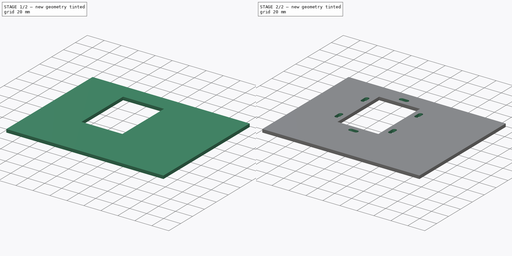
[diagram: build sequence overview — one tinted view per stage of 2, left to right]
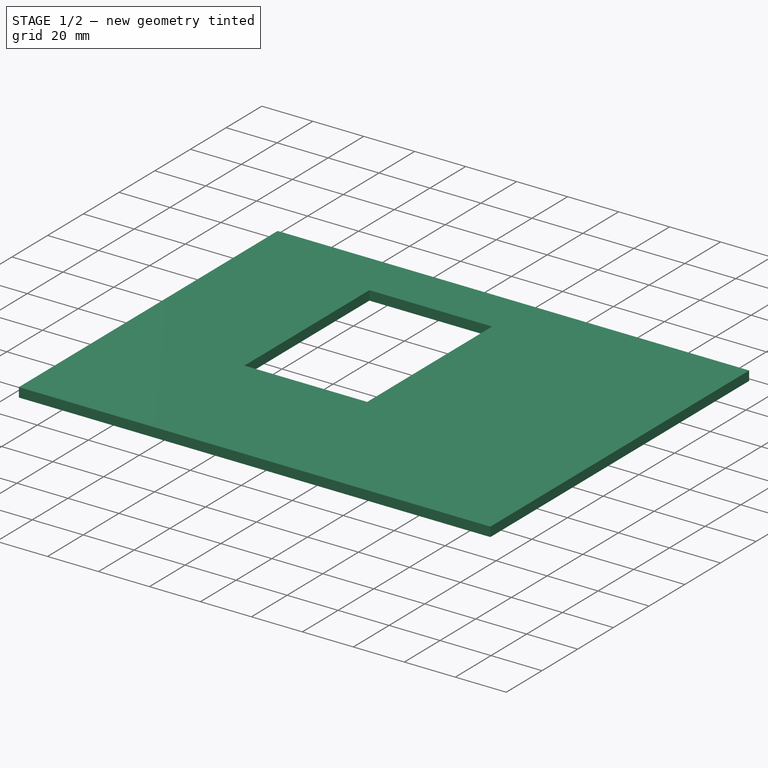
[diagram: stage 1 of 2 — iso view after this stage's code; geometry added in this stage tinted green]
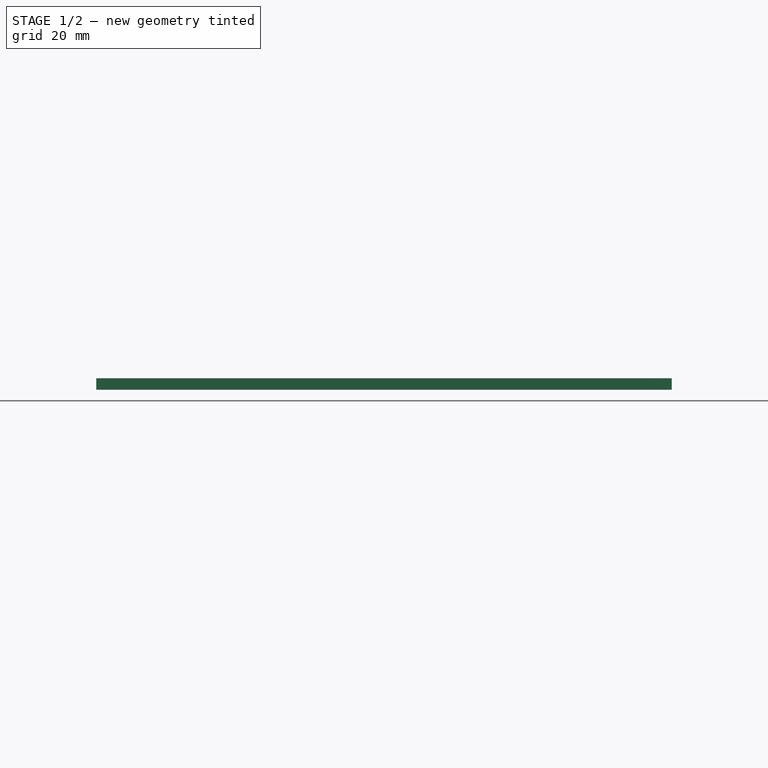
[diagram: stage 1 of 2 — front view after this stage's code; geometry added in this stage tinted green]
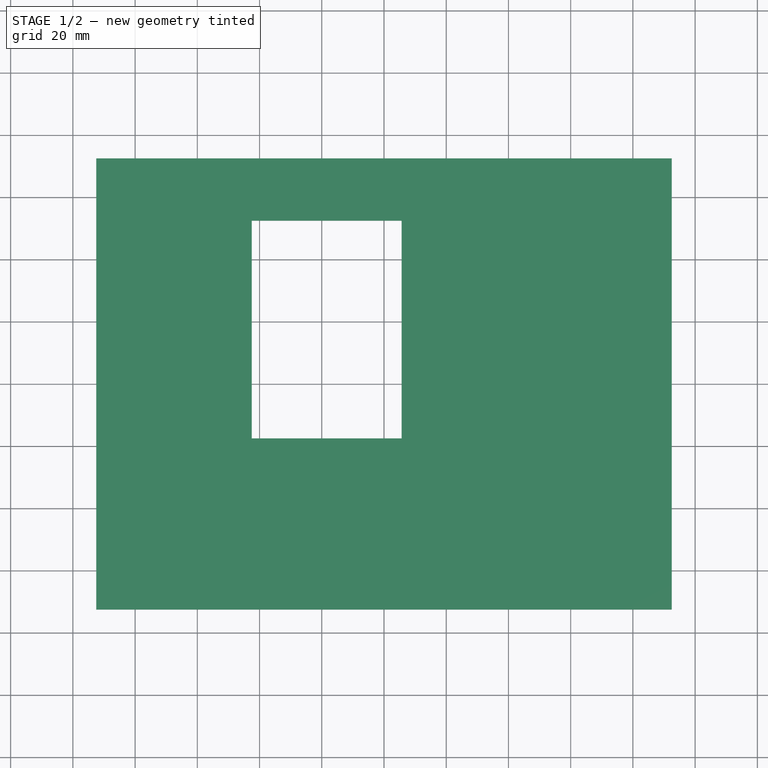
[diagram: stage 1 of 2 — top view after this stage's code; geometry added in this stage tinted green]
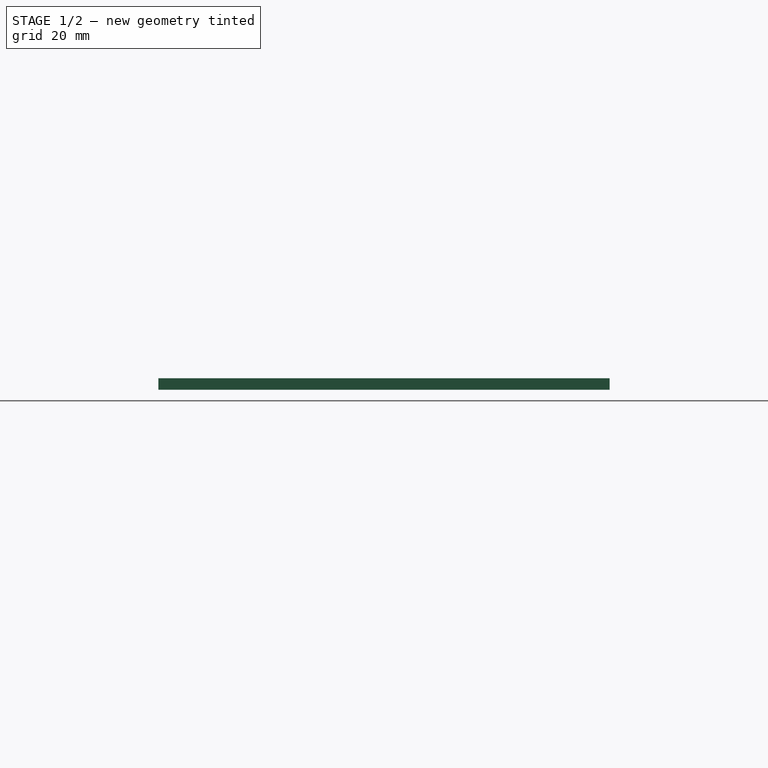
[diagram: stage 1 of 2 — right view after this stage's code; geometry added in this stage tinted green]
FCSTD DOCUMENT  (FreeCAD 0.19R)
Label: soporte rueda
License: All rights reserved
LicenseURL: http://en.wikipedia.org/wiki/All_rights_reserved
objects: Sketcher::SketchObject×4, PartDesign::Pocket×2, App::Part×1, PartDesign::Pad×1, PartDesign::Body×1
note: 11 computed .brp shape members not serialized (recipe doc carries the construction recipe); baked Part::Feature solids carry a one-line shape summary decoded from their .brp

FEATURE [App::Part] Part
  Origin = -> Origin
FEATURE [Sketcher::SketchObject] Sketch
  FullyConstrained = true
  MapMode = 5
  Support = -> [XY_Plane001]
  sketch-geometry (6):
    g0: LineSegment StartX=-92.5 StartY=72.5 StartZ=0 EndX=92.5 EndY=72.5 EndZ=0
    g1: LineSegment StartX=92.5 StartY=72.5 StartZ=0 EndX=92.5 EndY=-72.5 EndZ=0
    g2: LineSegment StartX=92.5 StartY=-72.5 StartZ=0 EndX=-92.5 EndY=-72.5 EndZ=0
    g3: LineSegment StartX=-92.5 StartY=-72.5 StartZ=0 EndX=-92.5 EndY=72.5 EndZ=0
    g4: LineSegment StartX=0 StartY=0 StartZ=0 EndX=92.5 EndY=72.5 EndZ=0
    g5: LineSegment StartX=0 StartY=0 StartZ=0 EndX=-92.5 EndY=-72.5 EndZ=0
  constraints (16):
    c: Coincident(g0,g1)
    c: Coincident(g1,g2)
    c: Coincident(g2,g3)
    c: Coincident(g3,g0)
    c: Horizontal(g0)
    c: Horizontal(g2)
    c: Vertical(g1)
    c: Vertical(g3)
    c: Coincident(g4,g-1)
    c: Coincident(g4,g0)
    c: Coincident(g5,g-1)
    c: Coincident(g5,g2)
    c: Parallel(g5,g4)
    c: DistanceX(g2,g2) = 185
    c: DistanceY(g1,g1) = 145
    c: Equal(g5,g4)
FEATURE [PartDesign::Pad] Pad
  Direction = (1,1,1)
  Length = 3.7
  Length2 = 100
  Profile = -> Sketch
  Refine = true
  Type = 0
FEATURE [Sketcher::SketchObject] Sketch001
  ExternalGeometry = -> [Pad]
  FullyConstrained = false
  MapMode = 5
  Placement = pos=(0,0,3.7) rot=(0,0,1;0rad)
  Support = -> [Pad]
  sketch-geometry (6):
    g0: LineSegment StartX=-42.5 StartY=52.5 StartZ=0 EndX=5.66535 EndY=52.5 EndZ=0
    g1: LineSegment StartX=5.66535 StartY=52.5 StartZ=0 EndX=5.66535 EndY=-17.5 EndZ=0
    g2: LineSegment StartX=5.66535 StartY=-17.5 StartZ=0 EndX=-42.5 EndY=-17.5 EndZ=0
    g3: LineSegment StartX=-42.5 StartY=-17.5 StartZ=0 EndX=-42.5 EndY=52.5 EndZ=0
    g4: LineSegment StartX=-92.5 StartY=29.7355 StartZ=0 EndX=-42.5 EndY=29.7355 EndZ=0
    g5: LineSegment StartX=-33.3012 StartY=52.5 StartZ=0 EndX=-33.3012 EndY=72.5 EndZ=0
  constraints (19):
    c: DistanceY(g-3,g-3) = 145
    c: DistanceX(g-4,g-4) = 185
    c: Coincident(g0,g1)
    c: Coincident(g1,g2)
    c: Coincident(g2,g3)
    c: Coincident(g3,g0)
    c: Horizontal(g0)
    c: Horizontal(g2)
    c: Vertical(g1)
    c: Vertical(g3)
    c: PointOnObject(g4,g-5)
    c: PointOnObject(g4,g3)
    c: Horizontal(g4)
    c: PointOnObject(g5,g0)
    c: PointOnObject(g5,g-4)
    c: Vertical(g5)
    c: DistanceX(g4,g4) = 50
    c: DistanceY(g5,g5) = 20
    c: DistanceY(g1,g1) = 70
FEATURE [PartDesign::Pocket] Pocket
  BaseFeature = -> Pad
  Length = 5
  Length2 = 100
  Profile = -> Sketch001
  Refine = true
  Type = 0
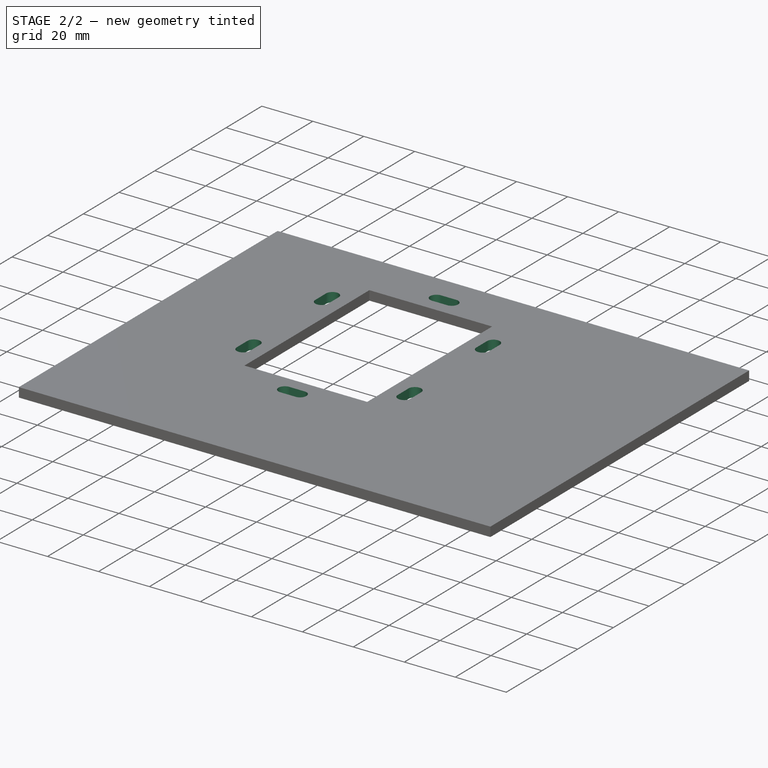
[diagram: stage 2 of 2 — iso view after this stage's code; geometry added in this stage tinted green]
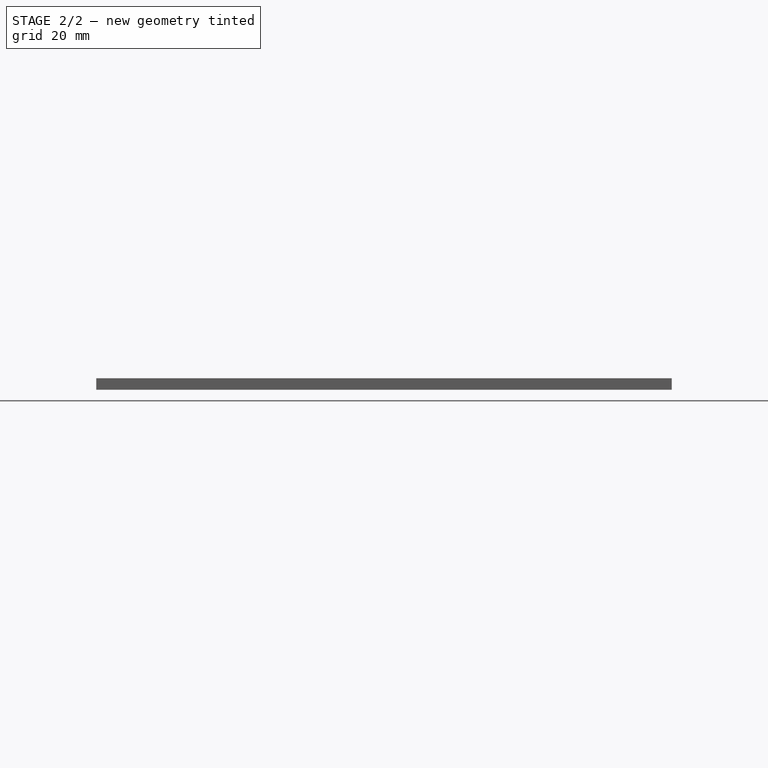
[diagram: stage 2 of 2 — front view after this stage's code; geometry added in this stage tinted green]
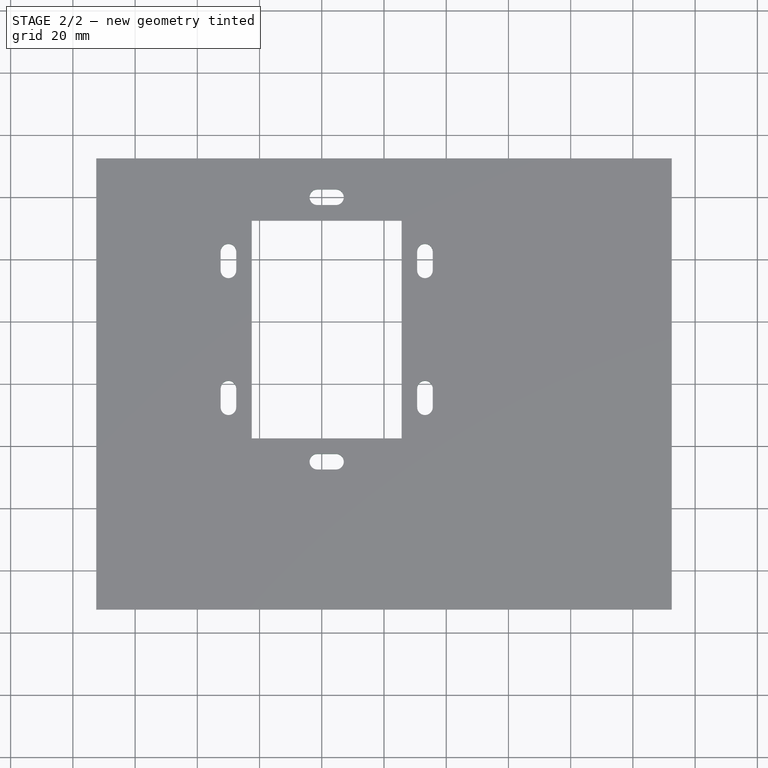
[diagram: stage 2 of 2 — top view after this stage's code; geometry added in this stage tinted green]
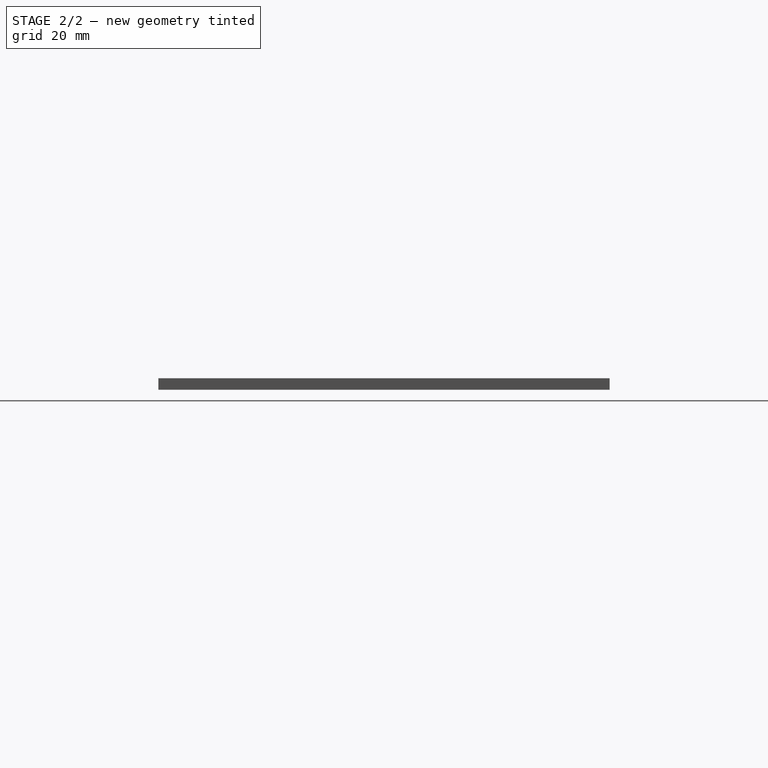
[diagram: stage 2 of 2 — right view after this stage's code; geometry added in this stage tinted green]
FEATURE [Sketcher::SketchObject] Sketch002
  FullyConstrained = true
  MapMode = 5
  Placement = pos=(0,0,3.7) rot=(0,0,1;0rad)
  Support = -> [Pocket]
FEATURE [Sketcher::SketchObject] Sketch003
  ExternalGeometry = -> [Pocket]
  FullyConstrained = false
  MapMode = 5
  Placement = pos=(0,0,3.7) rot=(0,0,1;0rad)
  Support = -> [Pocket]
  sketch-geometry (55):
    g0: ArcOfCircle CenterX=-21.4173 CenterY=60 CenterZ=0 NormalX=0 NormalY=0 NormalZ=1 AngleXU=0 Radius=2.5 StartAngle=1.5708 EndAngle=4.71239
    g1: ArcOfCircle CenterX=-15.4173 CenterY=60 CenterZ=0 NormalX=0 NormalY=0 NormalZ=1 AngleXU=0 Radius=2.5 StartAngle=4.71239 EndAngle=7.85398
    g2: LineSegment StartX=-21.4173 StartY=57.5 StartZ=0 EndX=-15.4173 EndY=57.5 EndZ=0
    g3: LineSegment StartX=-21.4173 StartY=62.5 StartZ=0 EndX=-15.4173 EndY=62.5 EndZ=0
    g4: LineSegment StartX=-18.5243 StartY=62.5 StartZ=0 EndX=-18.5243 EndY=57.5 EndZ=0
    g5: LineSegment StartX=-42.5 StartY=52.5 StartZ=0 EndX=-42.5 EndY=60 EndZ=0
    g6: LineSegment StartX=-42.5 StartY=60 StartZ=0 EndX=-21.4173 EndY=60 EndZ=0
    g7: LineSegment StartX=5.66535 StartY=52.5 StartZ=0 EndX=5.66535 EndY=61.6125 EndZ=0
    g8: LineSegment StartX=-15.4173 StartY=60 StartZ=0 EndX=5.66535 EndY=60 EndZ=0
    g9: LineSegment StartX=-18.5243 StartY=57.5 StartZ=0 EndX=-18.5243 EndY=52.5 EndZ=0
    g10: LineSegment StartX=-21.4161 StartY=-22.5 StartZ=0 EndX=-15.4186 EndY=-22.5 EndZ=0
    g11: ArcOfCircle CenterX=-21.4161 CenterY=-25 CenterZ=0 NormalX=0 NormalY=0 NormalZ=1 AngleXU=0 Radius=2.5 StartAngle=1.5708 EndAngle=4.71239
    g12: LineSegment StartX=-21.4161 StartY=-27.5 StartZ=0 EndX=-15.4186 EndY=-27.5 EndZ=0
    g13: ArcOfCircle CenterX=-15.4186 CenterY=-25 CenterZ=0 NormalX=0 NormalY=0 NormalZ=1 AngleXU=0 Radius=2.5 StartAngle=4.71239 EndAngle=7.85398
    g14: LineSegment StartX=-42.5 StartY=-17.5 StartZ=0 EndX=-42.5 EndY=-30.2477 EndZ=0
    g15: LineSegment StartX=5.66535 StartY=-17.5 StartZ=0 EndX=5.66535 EndY=-31.9594 EndZ=0
    g16: LineSegment StartX=-21.4161 StartY=-25 StartZ=0 EndX=-42.5 EndY=-25 EndZ=0
    g17: LineSegment StartX=-15.4186 StartY=-25 StartZ=0 EndX=5.66535 EndY=-25 EndZ=0
    g18: LineSegment StartX=-18.5152 StartY=-22.5 StartZ=0 EndX=-18.5152 EndY=-17.5 EndZ=0
    g19: LineSegment StartX=-18.5152 StartY=-22.5 StartZ=0 EndX=-18.5152 EndY=-27.5 EndZ=0
    g20: ArcOfCircle CenterX=-50 CenterY=42.5 CenterZ=0 NormalX=0 NormalY=0 NormalZ=1 AngleXU=0 Radius=2.5 StartAngle=-9e-16 EndAngle=3.14159
    g21: ArcOfCircle CenterX=-50 CenterY=36.5 CenterZ=0 NormalX=0 NormalY=0 NormalZ=1 AngleXU=0 Radius=2.5 StartAngle=3.14159 EndAngle=6.28319
    g22: LineSegment StartX=-52.5 StartY=42.5 StartZ=0 EndX=-52.5 EndY=36.5 EndZ=0
    g23: LineSegment StartX=-47.5 StartY=42.5 StartZ=0 EndX=-47.5 EndY=36.5 EndZ=0
    g24: LineSegment StartX=-42.5 StartY=52.5 StartZ=0 EndX=-42.5 EndY=17.5 EndZ=0
    g25: LineSegment StartX=-42.5 StartY=17.5 StartZ=0 EndX=-79.1708 EndY=17.5 EndZ=0
    g26: LineSegment StartX=-42.5 StartY=17.5 StartZ=0 EndX=34.6719 EndY=17.5 EndZ=0
    g27: ArcOfCircle CenterX=13.1653 CenterY=42.5 CenterZ=0 NormalX=0 NormalY=0 NormalZ=1 AngleXU=0 Radius=2.5 StartAngle=0 EndAngle=3.14159
    g28: ArcOfCircle CenterX=13.1653 CenterY=36.5 CenterZ=0 NormalX=0 NormalY=0 NormalZ=1 AngleXU=0 Radius=2.5 StartAngle=3.14159 EndAngle=6.28319
    g29: LineSegment StartX=10.6653 StartY=42.5 StartZ=0 EndX=10.6653 EndY=36.5 EndZ=0
    g30: LineSegment StartX=15.6653 StartY=42.5 StartZ=0 EndX=15.6653 EndY=36.5 EndZ=0
    g31: ArcOfCircle CenterX=-50 CenterY=-1.5 CenterZ=0 NormalX=0 NormalY=0 NormalZ=1 AngleXU=0 Radius=2.5 StartAngle=1e-16 EndAngle=3.14159
    g32: ArcOfCircle CenterX=-50 CenterY=-7.5 CenterZ=0 NormalX=0 NormalY=0 NormalZ=1 AngleXU=0 Radius=2.5 StartAngle=3.14159 EndAngle=6.28319
    g33: LineSegment StartX=-52.5 StartY=-1.5 StartZ=0 EndX=-52.5 EndY=-7.5 EndZ=0
    g34: LineSegment StartX=-47.5 StartY=-1.5 StartZ=0 EndX=-47.5 EndY=-7.5 EndZ=0
    g35: ArcOfCircle CenterX=13.1653 CenterY=-1.5 CenterZ=0 NormalX=0 NormalY=0 NormalZ=1 AngleXU=0 Radius=2.5 StartAngle=1e-16 EndAngle=3.14159
    g36: ArcOfCircle CenterX=13.1653 CenterY=-7.5 CenterZ=0 NormalX=0 NormalY=0 NormalZ=1 AngleXU=0 Radius=2.5 StartAngle=3.14159 EndAngle=6.28319
    g37: LineSegment StartX=10.6653 StartY=-1.5 StartZ=0 EndX=10.6653 EndY=-7.5 EndZ=0
    g38: LineSegment StartX=15.6653 StartY=-1.5 StartZ=0 EndX=15.6653 EndY=-7.5 EndZ=0
    g39: LineSegment StartX=-42.5 StartY=44.1421 StartZ=0 EndX=-47.5 EndY=44.1421 EndZ=0
    g40: LineSegment StartX=-47.5 StartY=44.1421 StartZ=0 EndX=-52.5 EndY=44.1421 EndZ=0
    g41: LineSegment StartX=-42.5 StartY=1.25291 StartZ=0 EndX=-47.5 EndY=1.25291 EndZ=0
    g42: LineSegment StartX=-47.5 StartY=1.25291 StartZ=0 EndX=-52.5 EndY=1.25291 EndZ=0
    g43: LineSegment StartX=10.6653 StartY=2.86587 StartZ=0 EndX=5.66535 EndY=2.86587 EndZ=0
    g44: LineSegment StartX=10.6653 StartY=2.86587 StartZ=0 EndX=15.6653 EndY=2.86587 EndZ=0
    g45: LineSegment StartX=10.6653 StartY=44.2865 StartZ=0 EndX=5.66535 EndY=44.2865 EndZ=0
    g46: LineSegment StartX=10.6653 StartY=44.2865 StartZ=0 EndX=15.6653 EndY=44.2865 EndZ=0
    g47: LineSegment StartX=5.66535 StartY=52.5 StartZ=0 EndX=18.7309 EndY=52.5 EndZ=0
    g48: LineSegment StartX=-42.5 StartY=-17.5 StartZ=0 EndX=-64.9789 EndY=-17.5 EndZ=0
    g49: LineSegment StartX=5.66535 StartY=-17.5 StartZ=0 EndX=21.6996 EndY=-17.5 EndZ=0
    g50: LineSegment StartX=-42.5 StartY=52.5 StartZ=0 EndX=-67.4348 EndY=52.5 EndZ=0
    g51: LineSegment StartX=13.1653 StartY=42.5 StartZ=0 EndX=13.1653 EndY=52.5 EndZ=0
    g52: LineSegment StartX=-50 StartY=42.5 StartZ=0 EndX=-50 EndY=52.5 EndZ=0
    g53: LineSegment StartX=-50 StartY=-7.5 StartZ=0 EndX=-50 EndY=-17.5 EndZ=0
    g54: LineSegment StartX=13.1653 StartY=-7.5 StartZ=0 EndX=13.1653 EndY=-17.5 EndZ=0
  constraints (143):
    c: Tangent(g0,g3) = 1.5708
    c: Tangent(g0,g2) = -1.5708
    c: Tangent(g2,g1) = -1.5708
    c: Tangent(g3,g1) = 1.5708
    c: Horizontal(g2)
    c: Equal(g0,g1)
    c: DistanceX(g3,g3) = 6
    c: PointOnObject(g4,g3)
    c: PointOnObject(g4,g2)
    c: Vertical(g4)
    c: DistanceY(g4,g4) = 5
    c: Coincident(g5,g-4)
    c: Vertical(g5)
    c: Coincident(g6,g5)
    c: Coincident(g6,g0)
    c: Horizontal(g6)
    c: Coincident(g7,g-10)
    c: Vertical(g7)
    c: Coincident(g8,g1)
    c: PointOnObject(g8,g7)
    c: Horizontal(g8)
    c: Coincident(g9,g4)
    c: PointOnObject(g9,g-4)
    c: Vertical(g9)
    c: Equal(g6,g8)
    c: DistanceY(g9,g9) = 5
    c: Tangent(g11,g10) = 1.5708
    c: Tangent(g11,g12) = -1.5708
    c: Tangent(g12,g13) = -1.5708
    c: Tangent(g10,g13) = 1.5708
    c: Horizontal(g12)
    c: Equal(g11,g13)
    c: Coincident(g14,g-9)
    c: Vertical(g14)
    c: Coincident(g15,g-10)
    c: Vertical(g15)
    c: Coincident(g16,g11)
    c: PointOnObject(g16,g14)
    c: Horizontal(g16)
    c: Coincident(g17,g13)
    c: PointOnObject(g17,g15)
    c: Horizontal(g17)
    c: Equal(g16,g17)
    c: PointOnObject(g18,g10)
    c: PointOnObject(g18,g-9)
    c: Vertical(g18)
    c: DistanceY(g18,g18) = 5
    c: Coincident(g19,g18)
    c: PointOnObject(g19,g12)
    c: Vertical(g19)
    c: DistanceY(g19,g19) = 5
    c: Tangent(g20,g23) = 1.5708
    c: Tangent(g20,g22) = -1.5708
    c: Tangent(g22,g21) = -1.5708
    c: Tangent(g23,g21) = 1.5708
    c: Vertical(g22)
    c: Equal(g20,g21)
    c: DistanceY(g-3,g-3) = 70
    c: Coincident(g24,g5)
    c: PointOnObject(g24,g-3)
    c: DistanceY(g24,g24) = 35
    c: Coincident(g25,g24)
    c: Horizontal(g25)
    c: Coincident(g26,g24)
    c: Horizontal(g26)
    c: Tangent(g27,g30) = 1.5708
    c: Tangent(g27,g29) = -1.5708
    c: Tangent(g29,g28) = -1.5708
    c: Tangent(g30,g28) = 1.5708
    c: Vertical(g29)
    c: Equal(g27,g28)
    c: Tangent(g31,g34) = 1.5708
    c: Tangent(g31,g33) = -1.5708
    c: Tangent(g33,g32) = -1.5708
    c: Tangent(g34,g32) = 1.5708
    c: Vertical(g33)
    c: Equal(g31,g32)
    c: Tangent(g35,g38) = 1.5708
    c: Tangent(g35,g37) = -1.5708
    c: Tangent(g37,g36) = -1.5708
    c: Tangent(g38,g36) = 1.5708
    c: Vertical(g37)
    c: Equal(g35,g36)
    c: DistanceY(g38,g38) = 6
    c: DistanceY(g30,g30) = 6
    c: DistanceY(g33,g33) = 6
    c: DistanceY(g22,g22) = 6
    c: PointOnObject(g39,g24)
    c: PointOnObject(g39,g23)
    c: Horizontal(g39)
    c: DistanceX(g39,g39) = 5
    c: Coincident(g40,g39)
    c: PointOnObject(g40,g22)
    c: Horizontal(g40)
    c: DistanceX(g40,g40) = 5
    c: PointOnObject(g41,g-3)
    c: PointOnObject(g41,g34)
    c: Horizontal(g41)
    c: Coincident(g42,g41)
    c: PointOnObject(g42,g33)
    c: Horizontal(g42)
    c: DistanceX(g41,g41) = 5
    c: DistanceX(g42,g42) = 5
    c: PointOnObject(g43,g37)
    c: PointOnObject(g43,g-10)
    c: Horizontal(g43)
    c: Coincident(g44,g43)
    c: PointOnObject(g44,g38)
    c: Horizontal(g44)
    c: DistanceX(g44,g44) = 5
    c: DistanceX(g43,g43) = 5
    c: PointOnObject(g45,g29)
    c: PointOnObject(g45,g-10)
    c: Horizontal(g45)
    c: Coincident(g46,g45)
    c: PointOnObject(g46,g30)
    c: Horizontal(g46)
    c: DistanceX(g46,g46) = 5
    c: DistanceX(g45,g45) = 5
    c: Coincident(g47,g7)
    c: Horizontal(g47)
    c: Coincident(g48,g14)
    c: Horizontal(g48)
    c: Coincident(g49,g15)
    c: Horizontal(g49)
    c: Coincident(g50,g5)
    c: Horizontal(g50)
    c: Coincident(g51,g27)
    c: PointOnObject(g51,g47)
    c: Vertical(g51)
    c: Coincident(g52,g20)
    c: PointOnObject(g52,g50)
    c: Vertical(g52)
    c: Coincident(g53,g32)
    c: PointOnObject(g53,g48)
    c: Vertical(g53)
    c: Coincident(g54,g36)
    c: PointOnObject(g54,g49)
    c: Vertical(g54)
    c: DistanceY(g52,g52) = 10
    c: DistanceY(g53,g53) = 10
    c: DistanceY(g54,g54) = 10
    c: DistanceY(g51,g51) = 10
FEATURE [PartDesign::Pocket] Pocket001
  BaseFeature = -> Pocket
  Length = 5
  Length2 = 100
  Profile = -> Sketch003
  Refine = true
  Type = 0
FEATURE [PartDesign::Body] Body
  Group = -> [Sketch,Pad,Sketch001,Pocket,Sketch002,Sketch003,Pocket001]
  Origin = -> Origin001
  Tip = -> Pocket001
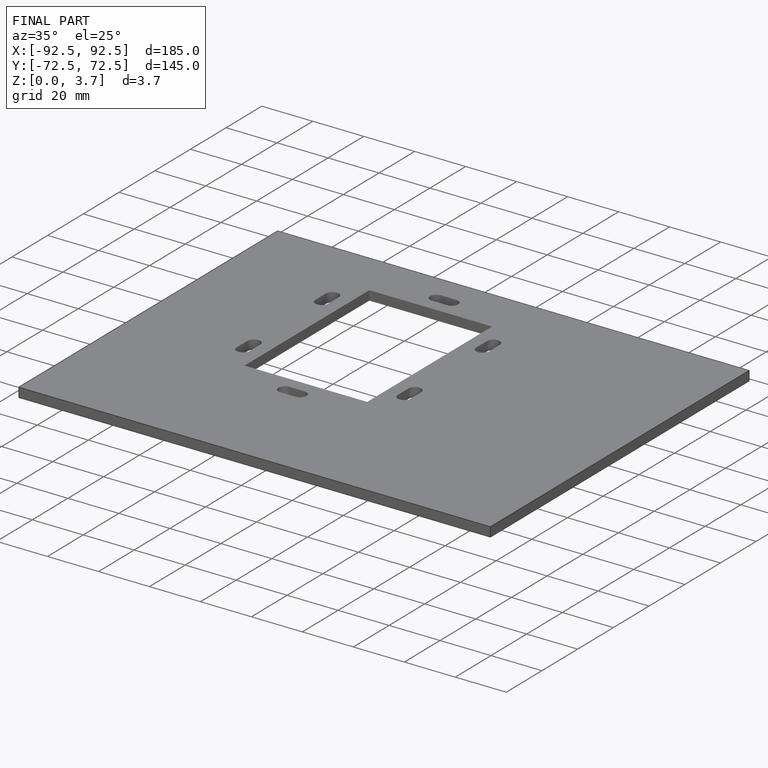
[diagram: finished part — iso view with bounding-box wireframe]
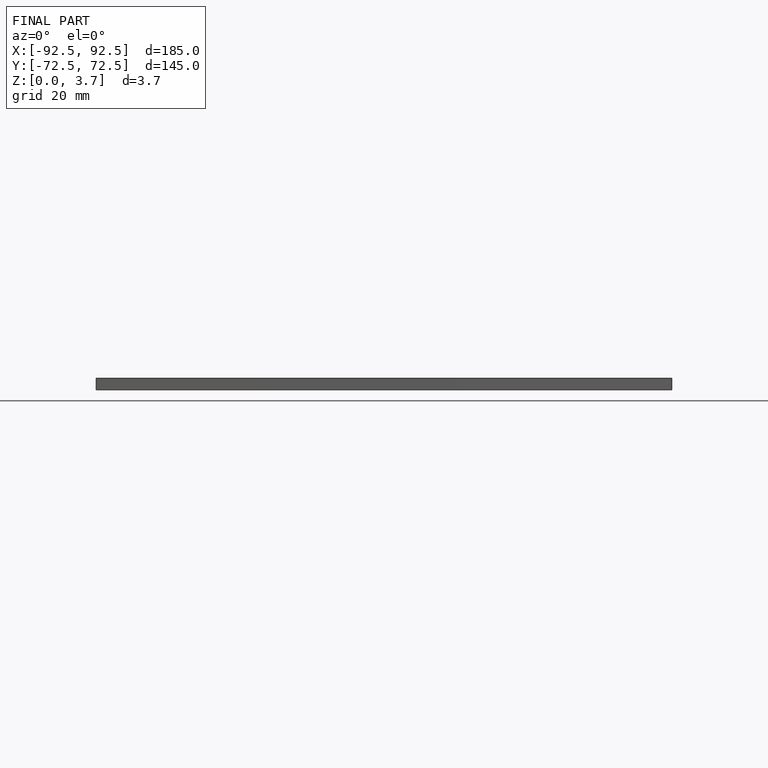
[diagram: finished part — front view with bounding-box wireframe]
